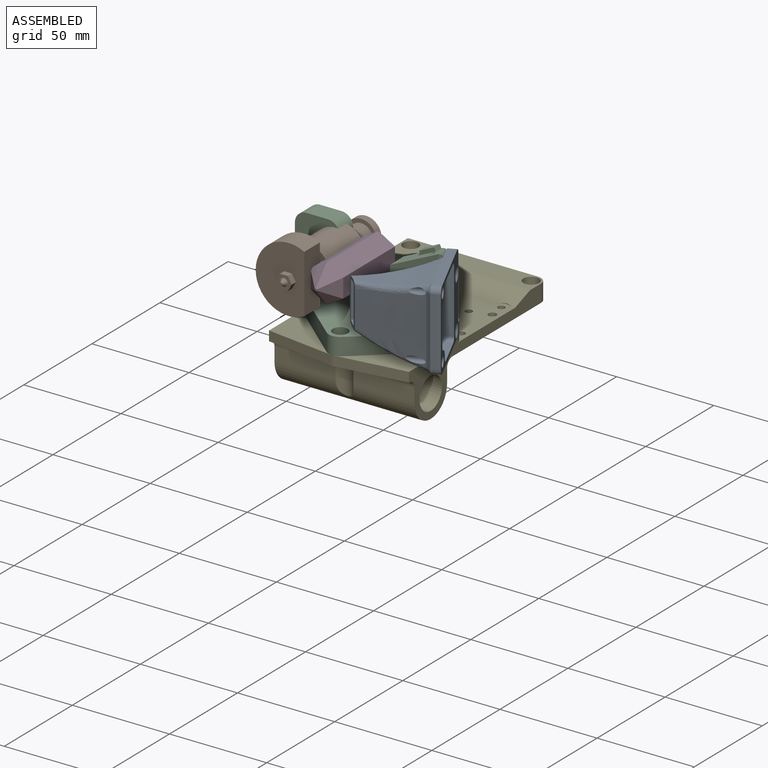
[diagram: assembled view]
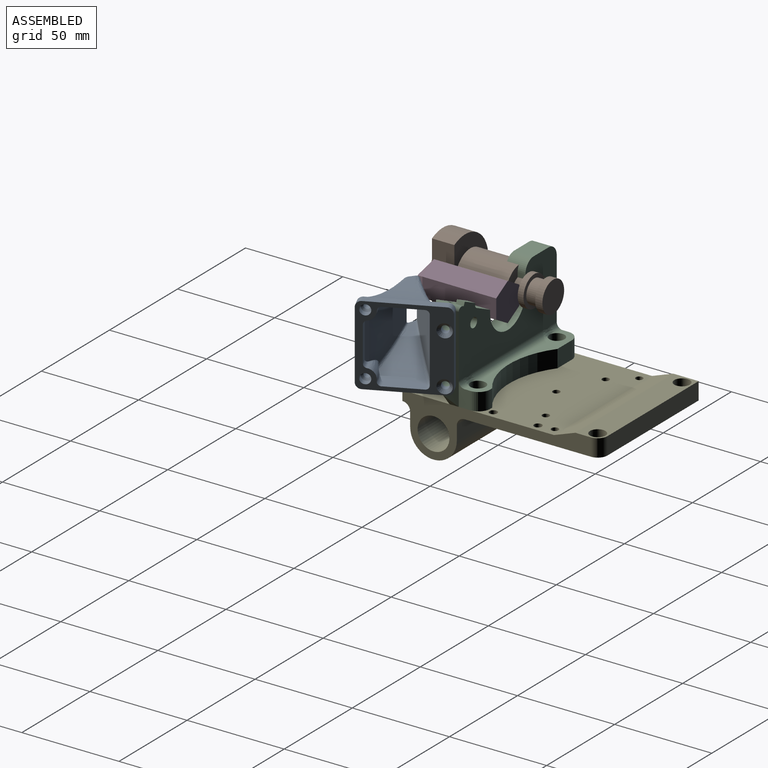
[diagram: assembled view, second angle]
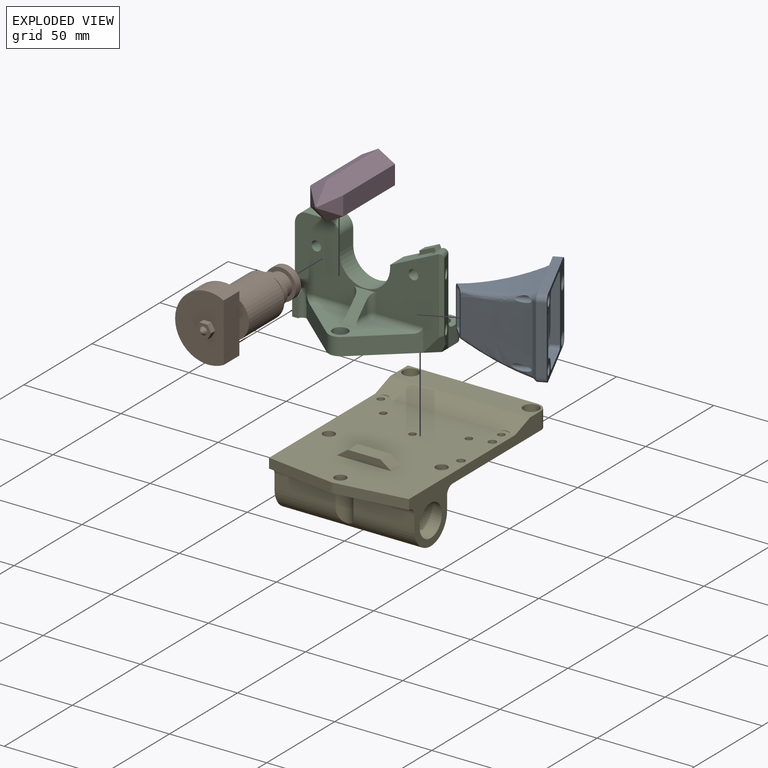
[diagram: exploded view]
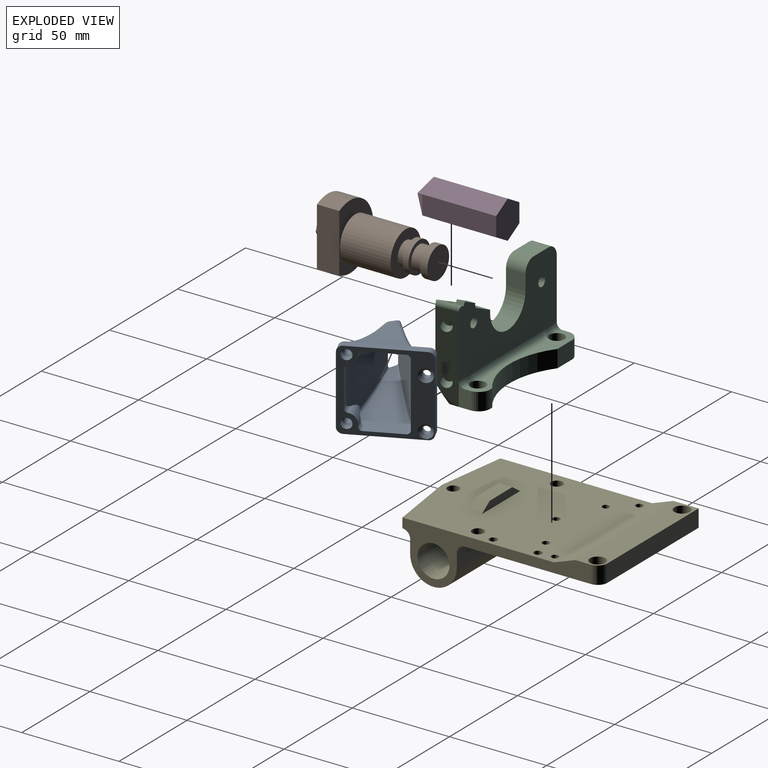
[diagram: exploded view, second angle]
ASSEMBLY  parts=5 mates=4
PART A: 60 faces, bbox 44x45.3x46.3 mm
  f0: bspline ~41.2x39.37mm, area 3534.2mm2, adj f4,f9,f10,f19,f22,f23,f25,f26
  f1: plane 21.3x9.13mm, normal (1,0,0), area 139.9mm2, adj f2,f5,f7,f8,f15,f27,f50
  f2: offset ~43.86x41.92mm, area 3317.1mm2, adj f1,f3,f7,f8,f18,f19,f43,f44
  f3: plane 20.54x1.96mm, normal (0,0,1), area 10.4mm2, adj f2,f12,f13,f44
  f4: plane 36.53x4.53mm, normal (-1,0,0), area 164.2mm2, adj f0,f5,f9,f23,f24,f36,f39
  f5: plane 42.5x41mm, normal (0,0,-1), area 641.2mm2, adj f1,f4,f6,f10,f11,f12,f13,f14
  f6: cylinder r=3mm len=4.5mm, axis (0,0,-1), area 21.2mm2, adj f5,f9,f10,f11
  f7: plane 2.85x2.03mm, normal (0,0,1), area 1.8mm2, adj f1,f2,f8,f15
  f8: plane 8.12x3.81mm, normal (0,0.42,0.91), area 2.7mm2, adj f1,f2,f7
  f9: plane 41.14x12.14mm, normal (0,0,1), area 346.3mm2, adj f0,f4,f6,f10,f11,f16,f17,f24
  f10: plane 36.5x4.5mm, normal (1,0,0), area 164.3mm2, adj f0,f5,f6,f9,f25,f34
  f11: plane 35x4.5mm, normal (0,1,0), area 157.5mm2, adj f5,f6,f9,f24
  f12: plane 18.6x4.5mm, normal (-1,0,0), area 83.7mm2, adj f3,f5,f13,f33
  f13: cylinder r=2mm len=4.5mm, axis (0,0,-1), area 14.1mm2, adj f3,f5,f12,f14,f18
  f14: plane 33x4.5mm, normal (0,-1,0), area 148.5mm2, adj f5,f13,f15,f18
  f15: cylinder r=2mm len=4.5mm, axis (0,0,-1), area 14.1mm2, adj f1,f5,f7,f14,f18
  f16: cylinder r=1.9mm len=3.8mm, axis (0,0,-1), area 34.6mm2, adj f9,f20
  f17: cylinder r=1.9mm len=3.8mm, axis (0,0,-1), area 34.6mm2, adj f9,f21
  f18: plane 34.25x0.21mm, normal (0,0,-1), area 2.7mm2, adj f2,f13,f14,f15
  f19: plane 23.25x7.1mm, normal (0,-0.42,0.91), area 85.1mm2, adj f0,f2
  f20: cone r=1.9mm half-angle=45deg, axis (0,0,-1), area 38.4mm2, adj f5,f16
  f21: cone r=1.9mm half-angle=45deg, axis (0,0,-1), area 38.4mm2, adj f5,f17
  f22: extruded ~9.47x2.31mm, area 14mm2, adj f0,f23
  f23: extruded ~22.54x5.01mm, area 81.1mm2, adj f0,f4,f22
  f24: cylinder r=3mm len=4.5mm, axis (0,0,1), area 21.2mm2, adj f4,f5,f9,f11
  f25: plane 2.3x0.13mm, normal (0.93,0,0.36), area 0.3mm2, adj f0,f10,f42,f55
  f26: plane 37.51x1.7mm, normal (0,0,1), area 35mm2, adj f0,f51,f52,f53,f54,f55
  f27: cylinder r=2mm len=4.5mm, axis (0,0,-1), area 15.4mm2, adj f1,f5,f28,f50
  f28: cylinder r=5mm len=5.66mm, axis (0,0,-1), area 35.3mm2, adj f5,f27,f29,f49
  f29: cylinder r=2mm len=4.5mm, axis (0,0,-1), area 12.8mm2, adj f5,f28,f30,f48
  f30: plane 18.14x4.5mm, normal (0,1,0), area 81.6mm2, adj f5,f29,f31,f43
  f31: cylinder r=2mm len=4.5mm, axis (0,0,-1), area 12.8mm2, adj f5,f30,f32,f47
  f32: cylinder r=5mm len=4.95mm, axis (0,0,-1), area 32.1mm2, adj f5,f31,f33,f45
  f33: cylinder r=2mm len=4.5mm, axis (0,0,-1), area 14.1mm2, adj f5,f12,f32,f46
  f34: cylinder r=3mm len=4.5mm, axis (0,0,-1), area 21.2mm2, adj f5,f10,f35,f42
  f35: plane 35x4.5mm, normal (0,-1,0), area 157.5mm2, adj f5,f34,f36,f41
  f36: extruded ~4.5x3mm, area 21.2mm2, adj f4,f5,f35,f40
  f37: cylinder r=2.6mm len=5.2mm, axis (0,0,-1), area 57.2mm2, adj f5,f59
  f38: cylinder r=2.6mm len=5.2mm, axis (0,0,-1), area 57.2mm2, adj f5,f58
  f39: plane 2.07x0.21mm, normal (-0.93,0,0.36), area 0.2mm2, adj f0,f4,f40,f51
  f40: bspline ~3.03x3.03mm, area 0.7mm2, adj f36,f39,f41,f52
  f41: plane 35x0.13mm, normal (0,-0.93,0.36), area 5mm2, adj f35,f40,f42,f53
  f42: cone r=3mm half-angle=21deg, axis (0,0,-1), area 0.7mm2, adj f25,f34,f41,f54
  f43: plane 18.17x0.05mm, normal (0,0.98,0.17), area 0.5mm2, adj f2,f30,f47,f48
  f44: plane 0.93x0.51mm, normal (0,0.98,0.17), area 0.2mm2, adj f2,f3,f46
  f45: cone r=5mm half-angle=10deg, axis (0,0,-1), area 53.5mm2, adj f2,f32,f46,f47
  f46: cone r=2mm half-angle=10deg, axis (0,0,1), area 10.7mm2, adj f2,f33,f44,f45
  f47: cone r=2mm half-angle=10deg, axis (0,0,1), area 4.7mm2, adj f2,f31,f43,f45
  f48: cone r=2mm half-angle=10deg, axis (0,0,1), area 4.7mm2, adj f2,f29,f43,f49
  f49: cone r=5mm half-angle=10deg, axis (0,0,-1), area 54.3mm2, adj f2,f28,f48,f50
  f50: cone r=2mm half-angle=10deg, axis (0,0,1), area 23.9mm2, adj f1,f2,f27,f49
  f51: plane 1.87x1.72mm, normal (-0.74,0,0.68), area 1.2mm2, adj f0,f26,f39,f52
  f52: bspline ~2.99x2.99mm, area 8.3mm2, adj f26,f40,f51,f53
  f53: plane 35x1.87mm, normal (0,-0.74,0.68), area 88.8mm2, adj f26,f41,f52,f54
  f54: cone r=2.95mm half-angle=42.6deg, axis (0,0,-1), area 8.3mm2, adj f26,f42,f53,f55
  f55: plane 2.29x1.87mm, normal (0.74,0,0.68), area 2mm2, adj f0,f25,f26,f54
  f56: cylinder r=1.6mm len=10.42mm, axis (0,0,-1), area 60.5mm2, adj f0,f58
  f57: cylinder r=1.6mm len=11.97mm, axis (0,0,-1), area 72mm2, adj f0,f59
  f58: cone r=1.6mm half-angle=45deg, axis (0,0,-1), area 18.7mm2, adj f38,f56
  f59: cone r=1.6mm half-angle=45deg, axis (0,0,-1), area 18.7mm2, adj f37,f57
PART B: 27 faces, bbox 28.2x34x62.3 mm
  f0: cylinder r=6mm len=12mm, axis (0,0,1), area 150.8mm2, adj f9,f21
  f1: cylinder r=3mm len=6mm, axis (0,0,1), area 49mm2, adj f5,f7
  f2: cylinder r=17mm len=34mm, axis (0,0,-1), area 805.8mm2, adj f3,f4,f5
  f3: plane 30x11.5mm, normal (1,0,0), area 345mm2, adj f2,f4,f5
  f4: plane 34x25mm, normal (0,0,1), area 687.3mm2, adj f2,f3,f6
  f5: plane 34x25mm, normal (0,0,-1), area 687.3mm2, adj f1,f2,f3
  f6: cylinder r=3mm len=6mm, axis (0,0,1), area 9.4mm2, adj f4,f17
  f7: plane 22.3x22.3mm, normal (0,0,1), area 362.3mm2, adj f1,f8
  f8: cylinder r=11.15mm len=26mm, axis (0,0,1), area 1821.5mm2, adj f7,f9
  f9: plane 22.3x22.3mm, normal (0,0,-1), area 277.5mm2, adj f0,f8
  f10: plane 3.5x3mm, normal (0.87,-0.5,0), area 12.1mm2, adj f11,f15,f16,f17
  f11: plane 3.5x3mm, normal (0.87,0.5,0), area 12.1mm2, adj f10,f12,f16,f17
  f12: plane 4.04x3mm, normal (0,1,0), area 12.1mm2, adj f11,f13,f16,f17
  f13: plane 3.5x3mm, normal (-0.87,0.5,0), area 12.1mm2, adj f12,f14,f16,f17
  f14: plane 3.5x3mm, normal (-0.87,-0.5,0), area 12.1mm2, adj f13,f15,f16,f17
  f15: plane 4.04x3mm, normal (0,-1,0), area 12.1mm2, adj f10,f14,f16,f17
  f16: plane 8.08x7mm, normal (0,0,1), area 29.9mm2, adj f10,f11,f12,f13,f14,f15,f18
  f17: plane 8.08x7mm, normal (0,0,-1), area 14.2mm2, adj f6,f10,f11,f12,f13,f14,f15
  f18: cone r=2mm half-angle=35deg, axis (0,0,-1), area 19.9mm2, adj f16,f19
  f19: plane 1.2x1.2mm, normal (0,0,1), area 1.1mm2, adj f18
  f20: cylinder r=8mm len=16mm, axis (0,0,-1), area 150.8mm2, adj f21,f22
  f21: plane 16x16mm, normal (0,0,1), area 88mm2, adj f0,f20
  f22: plane 16x16mm, normal (0,0,-1), area 88mm2, adj f20,f26
  f23: plane 16x16mm, normal (0,0,-1), area 201.1mm2, adj f24
  f24: cylinder r=8mm len=16mm, axis (0,0,-1), area 186mm2, adj f23,f25
  f25: plane 16x16mm, normal (0,0,1), area 88mm2, adj f24,f26
  f26: cylinder r=6mm len=12mm, axis (0,0,1), area 226.2mm2, adj f22,f25
PART C: 67 faces, bbox 76.6x46.2x49.2 mm
  f0: plane 74.22x49mm, normal (0,-1,0), area 1831.6mm2, adj f2,f5,f6,f7,f8,f9,f10,f11
  f1: plane 53.06x21mm, normal (0,0,1), area 441.1mm2, adj f2,f31,f32,f33,f35,f43,f53,f56
  f2: cylinder r=3mm len=24mm, axis (-1,0,0), area 107.2mm2, adj f0,f1,f31,f55
  f3: plane 9x1.4mm, normal (0,1,0), area 12.6mm2, adj f9,f27,f30,f37
  f4: plane 72x37.68mm, normal (0,1,0), area 1832.5mm2, adj f5,f7,f8,f10,f11,f12,f13,f14
  f5: plane 24.61x11.48mm, normal (-0.42,0,0.91), area 195.7mm2, adj f0,f4,f8,f14,f21,f22,f23,f25
  f6: plane 38.95x2.21mm, normal (0.42,-0.91,0), area 83.9mm2, adj f0,f8,f16,f63
  f7: plane 43x18mm, normal (-1,0,0), area 509.4mm2, adj f0,f4,f9,f29,f30,f38,f44,f60
  f8: cylinder r=2mm len=11.17mm, axis (0.41,-0.89,0.19), area 41.7mm2, adj f0,f4,f5,f6,f16
  f9: plane 72x46mm, normal (0,0,-1), area 1640mm2, adj f0,f3,f7,f26,f27,f28,f29,f31
  f10: plane 11x10mm, normal (0,0,1), area 110mm2, adj f0,f4,f44,f45
  f11: cylinder r=2.5mm len=10mm, axis (0,1,0), area 157.1mm2, adj f0,f4
  f12: cylinder r=2.5mm len=10mm, axis (0,1,0), area 157.1mm2, adj f0,f4
  f13: cylinder r=13mm len=26mm, axis (0,1,0), area 408.4mm2, adj f0,f4,f14,f15
  f14: plane 10x1.37mm, normal (-1,0,0), area 13.7mm2, adj f0,f4,f5,f13
  f15: plane 10x8mm, normal (1,0,0), area 80mm2, adj f0,f4,f13,f45
  f16: plane 46.02x9.06mm, normal (0.91,0.42,0), area 366.3mm2, adj f4,f6,f8,f17,f19,f26,f63,f64
  f17: cylinder r=2.6mm len=8.09mm, axis (0.91,0.42,0), area 97.9mm2, adj f16,f18,f21
  f18: plane 5.2x4.71mm, normal (0.91,0.42,0), area 21.2mm2, adj f17
  f19: cylinder r=2.6mm len=8.09mm, axis (0.91,0.42,0), area 106.2mm2, adj f16,f20
  f20: plane 5.2x4.71mm, normal (0.91,0.42,0), area 21.2mm2, adj f19
  f21: cylinder r=1.5mm len=7.87mm, axis (-0.42,0,0.91), area 60.8mm2, adj f5,f17
  f22: plane 9.52x6.25mm, normal (0,-1,0), area 17.9mm2, adj f5,f23,f24,f25
  f23: plane 4.1x1.81mm, normal (0.91,0,0.42), area 8.2mm2, adj f4,f5,f22,f24
  f24: plane 7.7x4.1mm, normal (-0.42,0,0.91), area 34.8mm2, adj f4,f22,f23,f25
  f25: cylinder r=2mm len=4.1mm, axis (0,1,0), area 12.9mm2, adj f4,f5,f22,f24
  f26: plane 12x6mm, normal (1,0,0), area 55.9mm2, adj f9,f16,f27,f30,f42
  f27: cylinder r=6mm len=9mm, axis (0,0,-1), area 84.8mm2, adj f3,f9,f26,f30
  f28: plane 10.6x9mm, normal (0,1,0), area 95.4mm2, adj f9,f29,f30,f37
  f29: cylinder r=6mm len=9mm, axis (0,0,-1), area 84.8mm2, adj f7,f9,f28,f30
  f30: plane 72x9mm, normal (0,0,1), area 293.4mm2, adj f3,f7,f26,f27,f28,f29,f34,f36
  f31: plane 26.08x22.54mm, normal (0.65,-0.76,0), area 313.2mm2, adj f0,f1,f2,f9,f33
  f32: plane 26.08x22.54mm, normal (-0.65,-0.76,0), area 313.2mm2, adj f0,f1,f9,f33,f43
  f33: cylinder r=6mm len=9mm, axis (0,0,-1), area 77mm2, adj f1,f9,f31,f32
  f34: cylinder r=3.9mm len=9mm, axis (0,0,-1), area 220.5mm2, adj f9,f30,f41
  f35: cylinder r=3.9mm len=9mm, axis (0,0,-1), area 220.5mm2, adj f1,f9
  f36: cylinder r=3.9mm len=9mm, axis (0,0,-1), area 220.5mm2, adj f9,f30,f39
  f37: cylinder r=40mm len=48mm, axis (0,0,-1), area 463.3mm2, adj f3,f9,f28,f30
  f38: cylinder r=3mm len=3.65mm, axis (1,0,0), area 17.2mm2, adj f4,f7,f30,f39
  f39: bspline ~8.01x3.29mm, area 22.6mm2, adj f4,f36,f38,f40
  f40: cylinder r=3mm len=51.3mm, axis (1,0,0), area 241.8mm2, adj f4,f30,f39,f41
  f41: bspline ~8.01x3.29mm, area 22.6mm2, adj f4,f34,f40,f42
  f42: cylinder r=3mm len=3.65mm, axis (1,0,0), area 17.2mm2, adj f4,f26,f30,f41
  f43: cylinder r=3mm len=24mm, axis (-1,0,0), area 107.2mm2, adj f0,f1,f32,f58
  f44: cylinder r=6mm len=10mm, axis (0,-1,0), area 94.2mm2, adj f0,f4,f7,f10
  f45: cylinder r=6mm len=10mm, axis (0,1,0), area 94.2mm2, adj f0,f4,f10,f15
  f46: plane 9.6x5mm, normal (-1,0,0), area 40.6mm2, adj f9,f47,f49,f50,f65,f66
  f47: plane 30x4.2mm, normal (0,-1,0), area 126mm2, adj f46,f48,f50,f66
  f48: plane 9.6x5mm, normal (1,0,0), area 40.6mm2, adj f9,f47,f49,f50,f65,f66
  f49: plane 30x4.2mm, normal (0,1,0), area 126mm2, adj f46,f48,f50,f65
  f50: plane 30x8mm, normal (0,0,-1), area 240mm2, adj f46,f47,f48,f49
  f51: plane 6.5x6.5mm, normal (1,0,0), area 21.1mm2, adj f53,f54,f56
  f52: plane 6.5x6.5mm, normal (-1,0,0), area 21.1mm2, adj f53,f57,f59
  f53: plane 12.5x12.5mm, normal (0,-0.71,0.71), area 117mm2, adj f0,f1,f51,f52,f54,f56,f57,f59
  f54: cylinder r=3mm len=9.5mm, axis (0,0,-1), area 39.6mm2, adj f0,f51,f53,f55
  f55: sphere r=3mm, area 14.1mm2, adj f2,f54,f56
  f56: cylinder r=3mm len=9.5mm, axis (0,-1,0), area 39.6mm2, adj f1,f51,f53,f55
  f57: cylinder r=3mm len=9.5mm, axis (0,0,1), area 39.6mm2, adj f0,f52,f53,f58
  f58: sphere r=3mm, area 14.1mm2, adj f43,f57,f59
  f59: cylinder r=3mm len=9.5mm, axis (0,1,0), area 39.6mm2, adj f1,f52,f53,f58
  f60: plane 5.83x3.46mm, normal (0,-0.87,0.5), area 15.1mm2, adj f0,f7,f61,f62
  f61: plane 10x3mm, normal (0,-1,0), area 30mm2, adj f7,f9,f60,f62
  f62: cylinder r=3mm len=13.46mm, axis (0,0,-1), area 45.2mm2, adj f0,f9,f60,f61
  f63: plane 10.36x10.23mm, normal (0.57,-0.66,-0.5), area 61.7mm2, adj f0,f6,f9,f16,f64
  f64: plane 6.12x4.94mm, normal (0.87,0,-0.5), area 13.7mm2, adj f9,f16,f63
  f65: plane 30x0.8mm, normal (0,0.71,-0.71), area 33.9mm2, adj f9,f46,f48,f49
  f66: plane 30x0.8mm, normal (0,-0.71,-0.71), area 33.9mm2, adj f9,f46,f47,f48
PART D: 14 faces, bbox 17x19.6x46 mm
  f0: plane 38x9.82mm, normal (1,0,0), area 373mm2, adj f1,f5,f6,f13
  f1: plane 38x8.5mm, normal (0.5,0.87,0), area 373mm2, adj f0,f2,f6,f11
  f2: plane 38x8.5mm, normal (-0.5,0.87,0), area 373mm2, adj f1,f3,f6,f9
  f3: plane 38x9.82mm, normal (-1,0,0), area 373mm2, adj f2,f4,f6,f8
  f4: plane 38x8.5mm, normal (-0.5,-0.87,0), area 373mm2, adj f3,f5,f6,f10
  f5: plane 38x8.5mm, normal (0.5,-0.87,0), area 373mm2, adj f0,f4,f6,f12
  f6: plane 19.63x17mm, normal (0,0,1), area 250.3mm2, adj f0,f1,f2,f3,f4,f5
  f7: plane 1.15x1mm, normal (0,0,-1), area 0.9mm2, adj f8,f9,f10,f11,f12,f13
  f8: plane 9.82x8mm, normal (-0.71,0,-0.71), area 58.8mm2, adj f3,f7,f9,f10
  f9: plane 9.53x8.5mm, normal (-0.35,0.61,-0.71), area 58.8mm2, adj f2,f7,f8,f11
  f10: plane 9.53x8.5mm, normal (-0.35,-0.61,-0.71), area 58.8mm2, adj f4,f7,f8,f12
  f11: plane 9.53x8.5mm, normal (0.35,0.61,-0.71), area 58.8mm2, adj f1,f7,f9,f13
  f12: plane 9.53x8.5mm, normal (0.35,-0.61,-0.71), area 58.8mm2, adj f5,f7,f10,f13
  f13: plane 9.82x8mm, normal (0.71,0,-0.71), area 58.8mm2, adj f0,f7,f11,f12
PART E: 48 faces, bbox 72.7x107.7x32.7 mm
  f0: plane 72x13mm, normal (0,0,1), area 830.1mm2, adj f3,f9,f10,f11,f37,f39,f42
  f1: cylinder r=1.8mm len=5mm, axis (0,0,-1), area 56.5mm2, adj f7,f38
  f2: cylinder r=1.8mm len=5mm, axis (0,0,-1), area 56.5mm2, adj f7,f36
  f3: plane 72.72x11.71mm, normal (0,-0.34,0.94), area 834.5mm2, adj f0,f8,f9,f10,f34,f35
  f4: plane 31.39x7mm, normal (0,-1,0), area 219.7mm2, adj f6,f10,f26,f28
  f5: plane 31.39x7mm, normal (0,-1,0), area 219.7mm2, adj f6,f9,f26,f27
  f6: cylinder r=12mm len=72mm, axis (1,0,0), area 2655.5mm2, adj f4,f5,f9,f10,f18,f26
  f7: plane 72x70mm, normal (0,0,-1), area 4887.9mm2, adj f1,f2,f9,f10,f11,f13,f14,f15
  f8: plane 84x72mm, normal (0,0,1), area 5449.1mm2, adj f3,f9,f10,f13,f14,f15,f16,f17
  f9: plane 102x32mm, normal (-1,0,0), area 869.8mm2, adj f0,f3,f5,f6,f7,f8,f11,f18
  f10: plane 97x32mm, normal (1,0,0), area 824.8mm2, adj f0,f3,f4,f6,f7,f8,f18,f19
  f11: plane 67x9mm, normal (0,1,0), area 603mm2, adj f0,f7,f9,f42
  f12: plane 72x11.5mm, normal (0,0,-1), area 212.3mm2, adj f22,f23,f24,f25,f26,f27,f28
  f13: cylinder r=1.8mm len=5mm, axis (0,0,-1), area 56.5mm2, adj f7,f8
  f14: cylinder r=1.8mm len=5mm, axis (0,0,-1), area 56.5mm2, adj f7,f8
  f15: cylinder r=1.8mm len=5mm, axis (0,0,-1), area 56.5mm2, adj f7,f8
  f16: cylinder r=1.8mm len=5mm, axis (0,0,-1), area 56.5mm2, adj f7,f8
  f17: cylinder r=1.8mm len=5mm, axis (0,0,-1), area 56.5mm2, adj f7,f8
  f18: plane 72x7.13mm, normal (0,1,0), area 504.6mm2, adj f6,f9,f10,f29,f30,f31,f32,f33
  f19: cylinder r=8.2mm len=72mm, axis (1,0,0), area 3709.6mm2, adj f9,f10
  f20: cylinder r=3mm len=6mm, axis (0,0,-1), area 94.2mm2, adj f7,f8,f30
  f21: cylinder r=3mm len=6mm, axis (0,0,-1), area 94.2mm2, adj f7,f8,f32
  f22: cylinder r=3mm len=6mm, axis (0,0,-1), area 94.2mm2, adj f8,f12
  f23: plane 35.17x5mm, normal (0.14,-0.99,0), area 177.6mm2, adj f8,f10,f12,f24
  f24: cylinder r=6mm len=5mm, axis (0,0,-1), area 8.4mm2, adj f8,f12,f23,f25
  f25: plane 35.17x5mm, normal (-0.14,-0.99,0), area 177.6mm2, adj f8,f9,f12,f24
  f26: cylinder r=5.5mm len=18.33mm, axis (0,0,1), area 191mm2, adj f4,f5,f6,f12,f27,f28
  f27: cylinder r=4mm len=31.39mm, axis (1,0,0), area 194.7mm2, adj f5,f9,f12,f26
  f28: cylinder r=4mm len=31.39mm, axis (1,0,0), area 194.7mm2, adj f4,f10,f12,f26
  f29: cylinder r=4mm len=4.76mm, axis (1,0,0), area 29.9mm2, adj f7,f10,f18,f30
  f30: bspline ~4.47x4mm, area 25mm2, adj f18,f20,f29,f31
  f31: cylinder r=4mm len=53.53mm, axis (1,0,0), area 336.3mm2, adj f7,f18,f30,f32
  f32: bspline ~4.47x4mm, area 25mm2, adj f18,f21,f31,f33
  f33: cylinder r=4mm len=4.76mm, axis (1,0,0), area 29.9mm2, adj f7,f9,f18,f32
  f34: cylinder r=4mm len=5.27mm, axis (0,0,-1), area 0mm2, adj f3,f8
  f35: cylinder r=4mm len=5.27mm, axis (0,0,-1), area 0mm2, adj f3,f8
  f36: plane 8x8mm, normal (0,0,1), area 40.1mm2, adj f2,f37
  f37: cylinder r=4mm len=8mm, axis (0,0,-1), area 100.5mm2, adj f0,f36
  f38: plane 8x8mm, normal (0,0,1), area 40.1mm2, adj f1,f39
  f39: cylinder r=4mm len=8mm, axis (0,0,-1), area 100.5mm2, adj f0,f38
  f40: cylinder r=2mm len=5mm, axis (0,0,1), area 62.8mm2, adj f7,f8
  f41: cylinder r=2mm len=5mm, axis (0,0,1), area 62.8mm2, adj f7,f8
  f42: cylinder r=5mm len=9mm, axis (0,0,-1), area 70.7mm2, adj f0,f7,f10,f11
  f43: plane 7x5.71mm, normal (-0.57,0,0.82), area 48.8mm2, adj f8,f45,f46,f47
  f44: plane 7x5.71mm, normal (0.57,0,0.82), area 48.8mm2, adj f8,f45,f46,f47
  f45: plane 16.58x7mm, normal (0,0,1), area 116mm2, adj f43,f44,f46,f47
  f46: plane 28x4mm, normal (0,-1,0), area 89.1mm2, adj f8,f43,f44,f45
  f47: plane 28x4mm, normal (0,1,0), area 89.1mm2, adj f8,f43,f44,f45
PLACE A rot(axis=(0.21,-0.95,0.21),92.7deg) t=(45.01,-26.58,11)mm
PLACE B rot(axis=(1,0,0),90deg) t=(-15.3,-57.6,35)mm
PLACE C t=(0,-25,0)mm
PLACE D rot(axis=(-1,0,0),90deg) t=(0,-71,35)mm
PLACE E t=(0,-3,-5)mm
MATE fastened A.f16 <-> C.f19  axis (-0.91,-0.42,0) through (38.21,-29.75,11)mm
MATE fastened D.f6 <-> C.f13  axis (0,1,0) through (0,-25,35)mm
MATE planar B.f0 <-> C.f13  axis (0,-1,0) through (-15.3,-25,35)mm
MATE fastened C.f33 <-> E.f22  axis (0,0,-1) through (0,-53,0)mm
